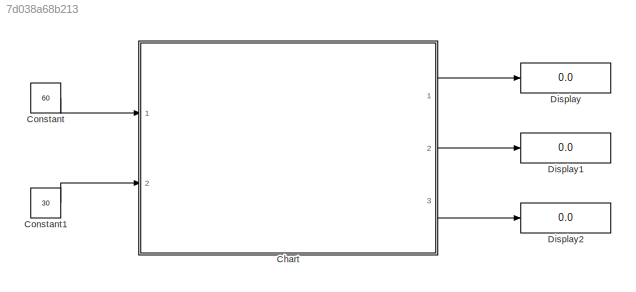
MODEL slx_7d038a68b213
KIND model
CONFIG AbsTol = auto
CONFIG EnableMultiTasking = off
CONFIG FixedStep = auto
CONFIG MaxStep = auto
CONFIG MinStep = auto
CONFIG RelTol = 1e-3
CONFIG SampleTimeConstraint = Unconstrained
CONFIG Solver = VariableStepAuto
CONFIG SolverName = VariableStepAuto
CONFIG StartTime = 0.0
CONFIG StopTime = 10.0
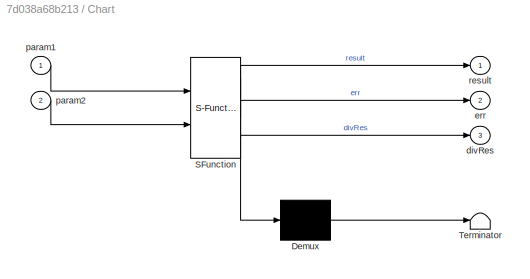
BLOCK [SubSystem] Chart
  ErrorFcn = Stateflow.Translate.translate
  PermitHierarchicalResolution = ExplicitOnly
  Ports = [2, 3]
  RequestExecContextInheritance = off
  SFBlockType = Chart
  TreatAsAtomicUnit = on
BLOCK [Demux] Chart/ Demux 
  Outputs = 1
  Ports = [1, 1]
BLOCK [S-Function] Chart/ SFunction 
  EnableBusSupport = on
  FunctionName = sf_sfun
  PortCounts = [2 4]
  Ports = [2, 4]
  SFcnIsStateOwnerBlock = off
  SFunctionDeploymentMode = off
  Tag = Stateflow S-Function graphical_calc 3
BLOCK [Terminator] Chart/ Terminator 
BLOCK [Outport] Chart/divRes
  IconDisplay = Port number
  Port = 3
BLOCK [Outport] Chart/err
  IconDisplay = Port number
  Port = 2
BLOCK [Inport] Chart/param1
  IconDisplay = Port number
BLOCK [Inport] Chart/param2
  IconDisplay = Port number
  Port = 2
BLOCK [Outport] Chart/result
  IconDisplay = Port number
BLOCK [Constant] Constant
  OutDataTypeStr = uint8
  Value = 60
BLOCK [Constant] Constant1
  OutDataTypeStr = uint8
  Value = 30
BLOCK [Display] Display
  Decimation = 1
  Ports = [1]
BLOCK [Display] Display1
  Decimation = 1
  Ports = [1]
BLOCK [Display] Display2
  Decimation = 1
  Ports = [1]
LINE Chart:1 -> Display:1
LINE Chart:2 -> Display1:1
LINE Chart:3 -> Display2:1
LINE Constant1:1 -> Chart:2
LINE Constant:1 -> Chart:1
CHART Chart states=2 transitions=9
  STATE_LABEL 'resultVal = add(n1,n2)'
  STATE_LABEL '{resultVal= n1+n2;}'
  STATE_LABEL 'div(n1,n2)'
  STATE_LABEL '% checkZero'
  STATE_LABEL '[n2==0]'
  STATE_LABEL '{divRes = n1/n2;}'
  STATE_LABEL '{err = 0;}'
